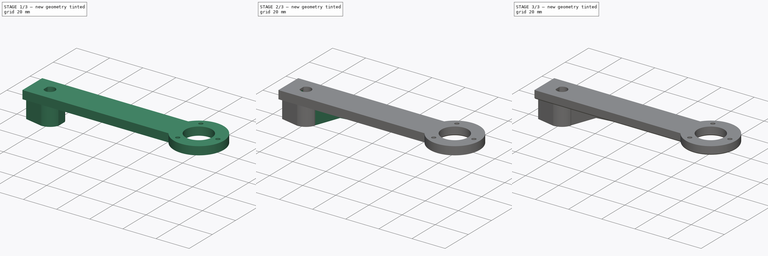
[diagram: build sequence overview — one tinted view per stage of 3, left to right]
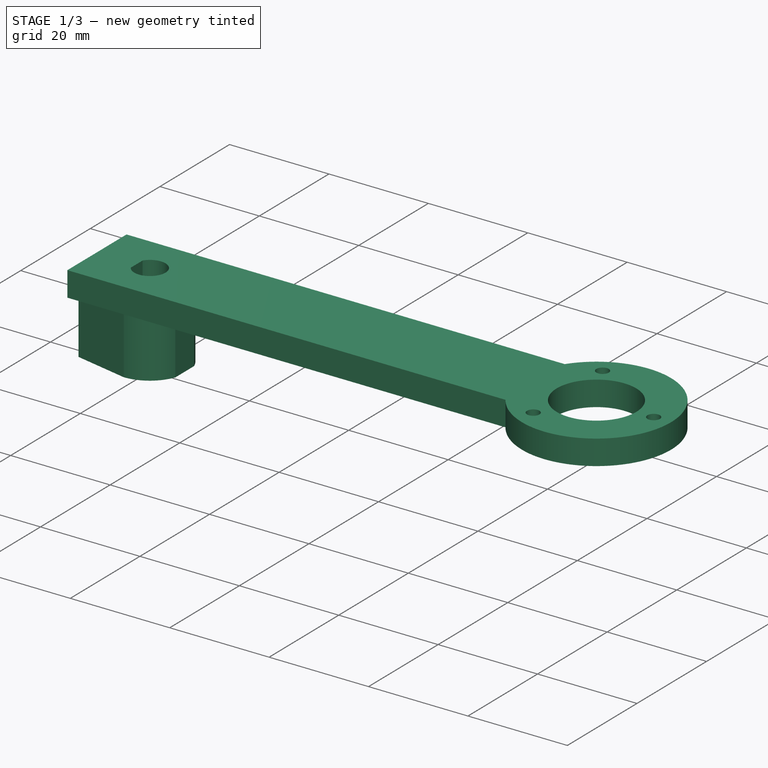
[diagram: stage 1 of 3 — iso view after this stage's code; geometry added in this stage tinted green]
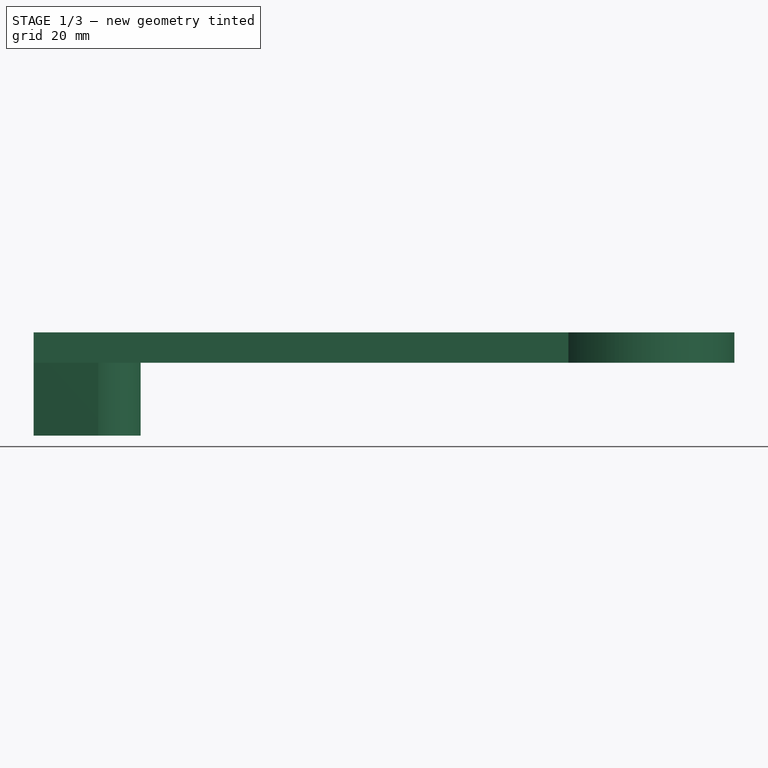
[diagram: stage 1 of 3 — front view after this stage's code; geometry added in this stage tinted green]
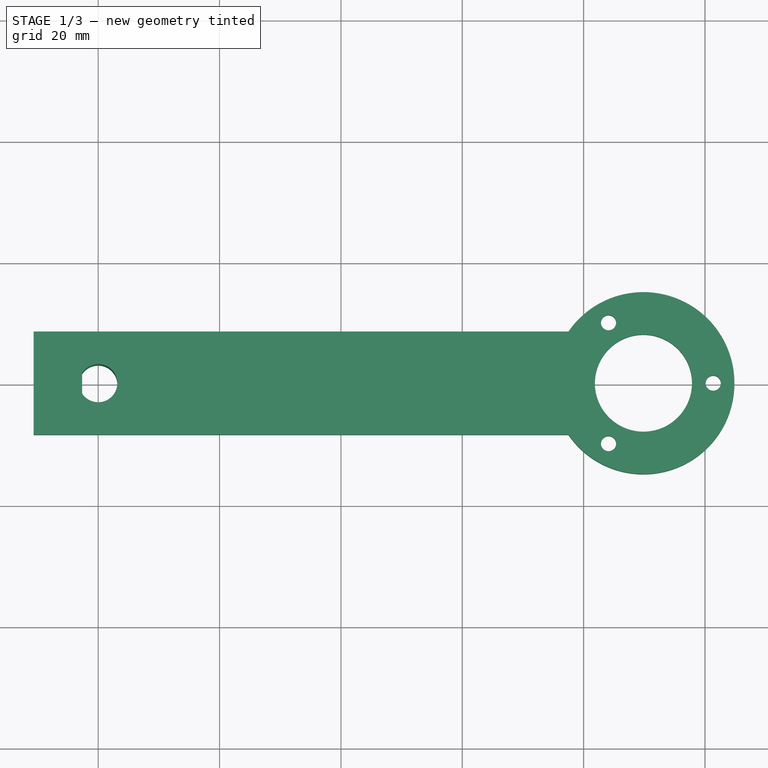
[diagram: stage 1 of 3 — top view after this stage's code; geometry added in this stage tinted green]
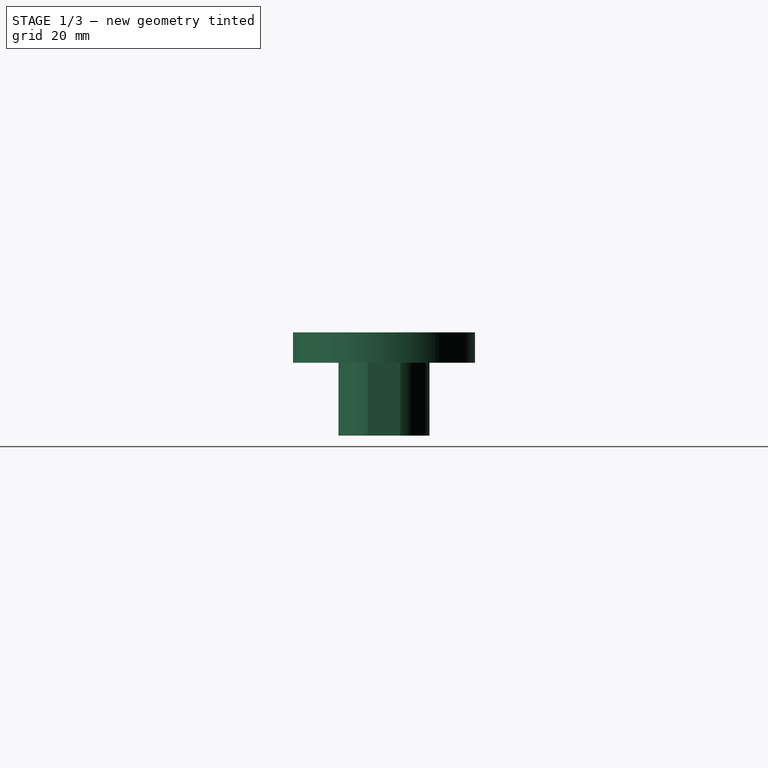
[diagram: stage 1 of 3 — right view after this stage's code; geometry added in this stage tinted green]
FCSTD DOCUMENT  (FreeCAD 0.19R24276 (Git))
Label: Shatun_L89_85__d8_d16
License: All rights reserved
LicenseURL: http://en.wikipedia.org/wiki/All_rights_reserved
objects: Sketcher::SketchObject×6, PartDesign::Pad×3, PartDesign::Chamfer×2, PartDesign::Pocket×1, PartDesign::Fillet×1, PartDesign::Body×1
note: 21 computed .brp shape members not serialized (recipe doc carries the construction recipe); baked Part::Feature solids carry a one-line shape summary decoded from their .brp

FEATURE [Sketcher::SketchObject] Sketch  label="Sketch_paper_knife"
  FullyConstrained = false
  MapMode = 5
  Support = -> [XY_Plane]
  sketch-geometry (42):
    g0: Circle CenterX=0 CenterY=0 CenterZ=0 NormalX=0 NormalY=0 NormalZ=1 AngleXU=0 Radius=70
    g1: LineSegment StartX=0 StartY=0 StartZ=0 EndX=-28.1555 EndY=64.088 EndZ=0
    g2: Circle CenterX=148 CenterY=0 CenterZ=0 NormalX=0 NormalY=0 NormalZ=1 AngleXU=0 Radius=70
    g3: LineSegment StartX=148 StartY=0 StartZ=0 EndX=119.844 EndY=64.088 EndZ=0
    g4: LineSegment StartX=119.844 StartY=64.088 StartZ=0 EndX=-28.1555 EndY=64.088 EndZ=0
    g5: LineSegment StartX=-234.473 StartY=320.288 StartZ=0 EndX=-134.473 EndY=320.288 EndZ=0
    g6: LineSegment StartX=-224.473 StartY=338.288 StartZ=0 EndX=-124.473 EndY=338.288 EndZ=0
    g7: LineSegment StartX=-134.473 StartY=320.288 StartZ=0 EndX=-124.473 EndY=338.288 EndZ=0
    g8: LineSegment StartX=-234.473 StartY=320.288 StartZ=0 EndX=-224.473 EndY=338.288 EndZ=0
    g9: Circle CenterX=-140.473 CenterY=329.288 CenterZ=0 NormalX=0 NormalY=0 NormalZ=1 AngleXU=0 Radius=2.3784
    g10: LineSegment StartX=-233.473 StartY=322.088 StartZ=0 EndX=-133.473 EndY=322.088 EndZ=0
    g11: Circle CenterX=0 CenterY=0 CenterZ=0 NormalX=0 NormalY=0 NormalZ=1 AngleXU=0 Radius=37.5
    g12: Circle CenterX=148 CenterY=0 CenterZ=0 NormalX=0 NormalY=0 NormalZ=1 AngleXU=0 Radius=37.5
    g13: Circle CenterX=119.844 CenterY=64.088 CenterZ=0 NormalX=0 NormalY=0 NormalZ=1 AngleXU=0 Radius=8
    g14: Circle CenterX=-28.1555 CenterY=64.088 CenterZ=0 NormalX=0 NormalY=0 NormalZ=1 AngleXU=0 Radius=8
    g15: Circle CenterX=119.844 CenterY=64.088 CenterZ=0 NormalX=0 NormalY=0 NormalZ=1 AngleXU=0 Radius=2.5
    g16: Circle CenterX=-28.1555 CenterY=64.088 CenterZ=0 NormalX=0 NormalY=0 NormalZ=1 AngleXU=0 Radius=2.5
    g17: Circle CenterX=22.2785 CenterY=154.482 CenterZ=0 NormalX=0 NormalY=0 NormalZ=1 AngleXU=0 Radius=2.5
    g18: LineSegment StartX=-100.221 StartY=182.69 StartZ=0 EndX=22.2785 EndY=182.69 EndZ=0
    g19: ArcOfCircle CenterX=27.0798 CenterY=159.482 CenterZ=0 NormalX=0 NormalY=0 NormalZ=1 AngleXU=0 Radius=16 StartAngle=4.17347 EndAngle=5.96536
    g20: LineSegment StartX=27.0798 StartY=159.482 StartZ=0 EndX=27.0798 EndY=143.482 EndZ=0
    g21: ArcOfCircle CenterX=-75.7215 CenterY=162.006 CenterZ=0 NormalX=0 NormalY=0 NormalZ=1 AngleXU=0 Radius=8 StartAngle=3.71141 EndAngle=5.43055
    g22: LineSegment StartX=-107.721 StartY=168.69 StartZ=0 EndX=-100.221 EndY=182.69 EndZ=0
    g23: LineSegment StartX=-107.721 StartY=168.69 StartZ=0 EndX=-103.721 EndY=157.69 EndZ=0
    g24: ArcOfCircle CenterX=-18.2109 CenterY=83.6932 CenterZ=0 NormalX=0 NormalY=0 NormalZ=1 AngleXU=0 Radius=72.29 StartAngle=1.03221 EndAngle=1.56403
    g25: LineSegment StartX=-17.7215 StartY=155.982 StartZ=0 EndX=-70.4575 EndY=155.982 EndZ=0
    g26: LineSegment StartX=-82.4575 StartY=157.69 StartZ=0 EndX=-103.721 EndY=157.69 EndZ=0
    g27: ArcOfCircle CenterX=16.2785 CenterY=157.242 CenterZ=0 NormalX=0 NormalY=0 NormalZ=1 AngleXU=0 Radius=26.1461 StartAngle=6.17743 EndAngle=7.62244
    g28: LineSegment StartX=22.2785 StartY=154.482 StartZ=0 EndX=42.2785 EndY=154.482 EndZ=0
    g29: LineSegment StartX=22.2785 StartY=154.482 StartZ=0 EndX=22.2785 EndY=182.69 EndZ=0
    g30: ArcOfCircle CenterX=-96.7215 CenterY=168.69 CenterZ=0 NormalX=0 NormalY=0 NormalZ=1 AngleXU=0 Radius=2.5 StartAngle=1.5708 EndAngle=4.71239
    g31: ArcOfCircle CenterX=-6.72148 CenterY=168.69 CenterZ=0 NormalX=0 NormalY=0 NormalZ=1 AngleXU=0 Radius=2.5 StartAngle=4.71239 EndAngle=7.85398
    g32: LineSegment StartX=-96.7215 StartY=166.19 StartZ=0 EndX=-6.72148 EndY=166.19 EndZ=0
    g33: LineSegment StartX=-96.7215 StartY=171.19 StartZ=0 EndX=-6.72148 EndY=171.19 EndZ=0
    g34: LineSegment StartX=-27.3628 StartY=293.719 StartZ=0 EndX=-27.3628 EndY=353.575 EndZ=0
    g35: LineSegment StartX=-190.721 StartY=159.69 StartZ=0 EndX=-90.7215 EndY=159.69 EndZ=0
    g36: LineSegment StartX=-180.721 StartY=177.69 StartZ=0 EndX=-80.7215 EndY=177.69 EndZ=0
    g37: LineSegment StartX=-90.7215 StartY=159.69 StartZ=0 EndX=-80.7215 EndY=177.69 EndZ=0
    g38: LineSegment StartX=-190.721 StartY=159.69 StartZ=0 EndX=-180.721 EndY=177.69 EndZ=0
    g39: Circle CenterX=-96.7215 CenterY=168.69 CenterZ=0 NormalX=0 NormalY=0 NormalZ=1 AngleXU=0 Radius=2.3784
    g40: LineSegment StartX=-189.721 StartY=161.49 StartZ=0 EndX=-89.7215 EndY=161.49 EndZ=0
    g41: LineSegment StartX=-69.9969 StartY=0.662501 StartZ=0 EndX=-139.997 EndY=0.662501 EndZ=0
  constraints (110):
    c: Coincident(g0,g-1)
    c: Coincident(g1,g-1)
    c: PointOnObject(g1,g0)
    c: Diameter(g0) = 140
    c: PointOnObject(g2,g-1)
    c: DistanceX(g-1,g2) = 148
    c: Equal(g2,g0)
    c: Coincident(g3,g2)
    c: PointOnObject(g3,g2)
    c: Coincident(g4,g3)
    c: Coincident(g4,g1)
    c: DistanceX(g4,g4) = 148
    c: Horizontal(g5)
    c: Horizontal(g6)
    c: Coincident(g7,g5)
    c: Coincident(g7,g6)
    c: Coincident(g8,g5)
    c: Coincident(g6,g8)
    c: Parallel(g8,g7)
    c: DistanceY(g5,g6) = 18
    c: DistanceX(g5,g5) = 100
    c: DistanceX(g5,g6) = 110
    c: DistanceX(g9,g5) = 6
    c: DistanceY(g5,g9) = 9
    c: PointOnObject(g10,g8)
    c: PointOnObject(g10,g7)
    c: Horizontal(g10)
    c: DistanceY(g5,g10) = 1.8
    c: Coincident(g11,g-1)
    c: Coincident(g12,g2)
    c: Equal(g12,g11)
    c: Diameter(g12) = 75
    c: Coincident(g13,g3)
    c: Diameter(g13) = 16
    c: Coincident(g14,g1)
    c: Equal(g14,g13)
    c: Coincident(g15,g3)
    c: Coincident(g16,g1)
    c: Equal(g16,g15)
    c: Diameter(g15) = 5
    c: Diameter(g17) = 5
    c: Horizontal(g18)
    c: Coincident(g20,g19)
    c: PointOnObject(g20,g19)
    c: Vertical(g20)
    c: DistanceX(g21,g17) = 98
    c: Diameter(g21) = 16
    c: DistanceX(g21,g21) = 12
    c: Coincident(g23,g22)
    c: DistanceX(g23,g17) = 126
    c: DistanceY(g23,g22) = 11
    c: DistanceY(g23,g22) = 25
    c: DistanceX(g24,g17) = 40
    c: Coincident(g19,g24)
    c: Diameter(g24) = 144.58
    c: Coincident(g25,g24)
    c: Coincident(g25,g21)
    c: Horizontal(g25)
    c: Coincident(g26,g21)
    c: Coincident(g26,g23)
    c: Horizontal(g26)
    c: DistanceX(g22,g23) = 4
    c: Coincident(g27,g19)
    c: Coincident(g18,g27)
    c: Coincident(g18,g22)
    c: DistanceX(g22,g18) = 7.5
    c: Coincident(g28,g17)
    c: Horizontal(g28)
    c: DistanceY(g20,g17) = 11
    c: Diameter(g19) = 32
    c: Coincident(g28,g19)
    c: Coincident(g29,g17)
    c: Coincident(g29,g18)
    c: Vertical(g29)
    c: DistanceX(g27,g17) = 6
    c: DistanceY(g17,g27) = 2.76
    c: DistanceX(g17,g19) = 20
    c: Tangent(g30,g33) = 1.5708
    c: Tangent(g30,g32) = -1.5708
    c: Tangent(g32,g31) = -1.5708
    c: Tangent(g33,g31) = 1.5708
    c: Horizontal(g32)
    c: Equal(g30,g31)
    c: Diameter(g31) = 5
    c: Vertical(g34)
    c: Horizontal(g35)
    c: Horizontal(g36)
    c: Coincident(g37,g35)
    c: Coincident(g37,g36)
    c: Coincident(g38,g35)
    c: Coincident(g36,g38)
    c: Parallel(g38,g37)
    c: DistanceY(g35,g36) = 18
    c: Equal(g5,g35) = 100
    c: DistanceX(g35,g36) = 110
    c: DistanceX(g39,g35) = 6
    c: DistanceY(g35,g39) = 9
    c: PointOnObject(g40,g38)
    c: PointOnObject(g40,g37)
    c: Horizontal(g40)
    c: DistanceY(g35,g40) = 1.8
    c: DistanceY(g23,g30) = 11
    c: Coincident(g39,g30)
    c: DistanceX(g23,g30) = 7
    c: DistanceX(g23,g31) = 97
    c: PointOnObject(g41,g0)
    c: Horizontal(g41)
    c: DistanceX(g41,g41) = 70
    c: DistanceX(g19,g17) = 3.41
    c: DistanceY(g17,g24) = 1.5
FEATURE [Sketcher::SketchObject] Sketch001  label="Sketch001_master_sketch"
  FullyConstrained = false
  MapMode = 5
  Support = -> [XY_Plane]
  sketch-geometry (11):
    g0: Circle CenterX=0 CenterY=0 CenterZ=0 NormalX=0 NormalY=0 NormalZ=1 AngleXU=0 Radius=70
    g1: LineSegment StartX=0 StartY=0 StartZ=0 EndX=-30.5451 EndY=62.9841 EndZ=0
    g2: Circle CenterX=200 CenterY=0 CenterZ=0 NormalX=0 NormalY=0 NormalZ=1 AngleXU=0 Radius=70
    g3: LineSegment StartX=200 StartY=0 StartZ=0 EndX=169.455 EndY=62.9841 EndZ=0
    g4: LineSegment StartX=169.455 StartY=62.9841 StartZ=0 EndX=-30.5451 EndY=62.9841 EndZ=0
    g5: Circle CenterX=0 CenterY=0 CenterZ=0 NormalX=0 NormalY=0 NormalZ=1 AngleXU=0 Radius=37.5
    g6: Circle CenterX=200 CenterY=0 CenterZ=0 NormalX=0 NormalY=0 NormalZ=1 AngleXU=0 Radius=37.5
    g7: Circle CenterX=169.455 CenterY=62.9841 CenterZ=0 NormalX=0 NormalY=0 NormalZ=1 AngleXU=0 Radius=8
    g8: Circle CenterX=-30.5451 CenterY=62.9841 CenterZ=0 NormalX=0 NormalY=0 NormalZ=1 AngleXU=0 Radius=8
    g9: Circle CenterX=169.455 CenterY=62.9841 CenterZ=0 NormalX=0 NormalY=0 NormalZ=1 AngleXU=0 Radius=2.5
    g10: Circle CenterX=-30.5451 CenterY=62.9841 CenterZ=0 NormalX=0 NormalY=0 NormalZ=1 AngleXU=0 Radius=2.5
  constraints (24):
    c: Coincident(g0,g-1)
    c: Coincident(g1,g-1)
    c: PointOnObject(g1,g0)
    c: Diameter(g0) = 140
    c: PointOnObject(g2,g-1)
    c: DistanceX(g-1,g2) = 200
    c: Equal(g2,g0)
    c: Coincident(g3,g2)
    c: PointOnObject(g3,g2)
    c: Coincident(g4,g3)
    c: Coincident(g4,g1)
    c: DistanceX(g4,g4) = 200
    c: Coincident(g5,g-1)
    c: Coincident(g6,g2)
    c: Equal(g6,g5)
    c: Diameter(g6) = 75
    c: Coincident(g7,g3)
    c: Diameter(g7) = 16
    c: Coincident(g8,g1)
    c: Equal(g8,g7)
    c: Coincident(g9,g3)
    c: Coincident(g10,g1)
    c: Equal(g10,g9)
    c: Diameter(g9) = 5
FEATURE [Sketcher::SketchObject] Sketch002  label="Sketch002_d6,3_d15_L8"
  FullyConstrained = false
  MapMode = 5
  Support = -> [XY_Plane]
  sketch-geometry (12):
    g0: ArcOfCircle CenterX=-4.7e-15 CenterY=0 CenterZ=0 NormalX=0 NormalY=0 NormalZ=1 AngleXU=0 Radius=3.15 StartAngle=3.71276 EndAngle=8.85361
    g1: LineSegment StartX=-2.65 StartY=1.70294 StartZ=0 EndX=-2.65 EndY=-1.70294 EndZ=0
    g2: LineSegment StartX=0 StartY=0 StartZ=0 EndX=3.15 EndY=0 EndZ=0
    g3: ArcOfCircle CenterX=-4.7e-15 CenterY=0 CenterZ=0 NormalX=0 NormalY=0 NormalZ=1 AngleXU=0 Radius=7.5 StartAngle=4.71239 EndAngle=5.91598
    g4: LineSegment StartX=-10.65 StartY=5.28957 StartZ=0 EndX=-10.65 EndY=-5.28957 EndZ=0
    g5: LineSegment StartX=-4.7e-15 StartY=0 StartZ=0 EndX=-4.7e-15 EndY=7.5 EndZ=0
    g6: LineSegment StartX=-10.65 StartY=5.28957 StartZ=0 EndX=-5.3e-15 EndY=7.5 EndZ=0
    g7: LineSegment StartX=-4.7e-15 StartY=0 StartZ=0 EndX=-4.7e-15 EndY=-7.5 EndZ=0
    g8: LineSegment StartX=-10.65 StartY=-5.28957 StartZ=0 EndX=-5.3e-15 EndY=-7.5 EndZ=0
    g9: LineSegment StartX=-4.7e-15 StartY=0 StartZ=0 EndX=-10.65 EndY=0 EndZ=0
    g10: LineSegment StartX=7 StartY=2.69258 StartZ=0 EndX=7 EndY=-2.69258 EndZ=0
    g11: ArcOfCircle CenterX=-4.7e-15 CenterY=0 CenterZ=0 NormalX=0 NormalY=0 NormalZ=1 AngleXU=0 Radius=7.5 StartAngle=0.367208 EndAngle=1.5708
  constraints (32):
    c: Coincident(g0,g-1)
    c: Diameter(g0) = 6.3
    c: Vertical(g1)
    c: Coincident(g2,g-1)
    c: PointOnObject(g2,g0)
    c: Horizontal(g2)
    c: Coincident(g1,g0)
    c: Coincident(g1,g0)
    c: DistanceX(g0,g2) = 5.8
    c: Coincident(g3,g0)
    c: Diameter(g3) = 15
    c: Vertical(g4)
    c: DistanceX(g4,g0) = 8
    c: Coincident(g5,g0)
    c: Coincident(g6,g4)
    c: Coincident(g6,g5)
    c: Vertical(g5)
    c: Coincident(g7,g0)
    c: Coincident(g8,g4)
    c: Coincident(g8,g7)
    c: Coincident(g9,g0)
    c: Symmetric(g4,g4,g9)
    c: Horizontal(g9)
    c: Coincident(g3,g7)
    c: Coincident(g11,g5)
    c: Vertical(g10)
    c: DistanceX(g3,g10) = 7
    c: Vertical(g7)
    c: Equal(g3,g11)
    c: Coincident(g3,g10)
    c: Coincident(g11,g10)
    c: Coincident(g3,g11)
FEATURE [PartDesign::Pad] Pad  label="Pad_h12"
  Direction = (1,1,1)
  Length = 12
  Length2 = 100
  Profile = -> Sketch002
  Type = 0
FEATURE [Sketcher::SketchObject] Sketch004  label="Sketch004_shatun_L70"
  FullyConstrained = false
  MapMode = 5
  Placement = pos=(0,0,12) rot=(0,0,1;0rad)
  sketch-geometry (18):
    g0: LineSegment StartX=-10.65 StartY=8.5 StartZ=0 EndX=77.4908 EndY=8.5 EndZ=0
    g1: LineSegment StartX=77.4908 StartY=-8.5 StartZ=0 EndX=-10.65 EndY=-8.5 EndZ=0
    g2: LineSegment StartX=-10.65 StartY=-8.5 StartZ=0 EndX=-10.65 EndY=8.5 EndZ=0
    g3: LineSegment StartX=0 StartY=0 StartZ=0 EndX=-10.65 EndY=0 EndZ=0
    g4: Circle CenterX=89.85 CenterY=0 CenterZ=0 NormalX=0 NormalY=0 NormalZ=1 AngleXU=0 Radius=8
    g5: ArcOfCircle CenterX=89.85 CenterY=0 CenterZ=0 NormalX=0 NormalY=0 NormalZ=1 AngleXU=0 Radius=15 StartAngle=3.74405 EndAngle=8.82232
    g6: ArcOfCircle CenterX=0 CenterY=0 CenterZ=0 NormalX=0 NormalY=0 NormalZ=1 AngleXU=0 Radius=3.15 StartAngle=3.71276 EndAngle=8.85361
    g7: LineSegment StartX=-2.65 StartY=1.70294 StartZ=0 EndX=-2.65 EndY=-1.70294 EndZ=0
    g8: LineSegment StartX=0 StartY=0 StartZ=0 EndX=3.15 EndY=0 EndZ=0
    g9: LineSegment StartX=101.35 StartY=0 StartZ=0 EndX=84.1 EndY=9.95929 EndZ=0
    g10: LineSegment StartX=84.1 StartY=9.95929 StartZ=0 EndX=84.1 EndY=-9.95929 EndZ=0
    g11: LineSegment StartX=84.1 StartY=-9.95929 StartZ=0 EndX=101.35 EndY=0 EndZ=0
    g12: Circle CenterX=89.85 CenterY=0 CenterZ=0 NormalX=0 NormalY=0 NormalZ=1 AngleXU=0 Radius=11.5
    g13: Circle CenterX=84.1 CenterY=9.95929 CenterZ=0 NormalX=0 NormalY=0 NormalZ=1 AngleXU=0 Radius=1.25
    g14: Circle CenterX=101.35 CenterY=0 CenterZ=0 NormalX=0 NormalY=0 NormalZ=1 AngleXU=0 Radius=1.25
    g15: Circle CenterX=84.1 CenterY=-9.95929 CenterZ=0 NormalX=0 NormalY=0 NormalZ=1 AngleXU=0 Radius=1.25
    g16: Circle CenterX=89.85 CenterY=0 CenterZ=0 NormalX=0 NormalY=0 NormalZ=1 AngleXU=0 Radius=15
    g17: LineSegment StartX=89.85 StartY=0 StartZ=0 EndX=74.85 EndY=0 EndZ=0
  constraints (47):
    c: Coincident(g1,g2)
    c: Coincident(g2,g0)
    c: Horizontal(g0)
    c: Horizontal(g1)
    c: Vertical(g2)
    c: Coincident(g3,g-1)
    c: PointOnObject(g3,g-1)
    c: DistanceX(g3,g3) = 10.65
    c: Symmetric(g1,g0,g3)
    c: DistanceY(g2,g2) = 17
    c: PointOnObject(g4,g-1)
    c: Diameter(g4) = 16
    c: Coincident(g5,g4)
    c: Diameter(g5) = 30
    c: Coincident(g5,g1)
    c: Coincident(g5,g0)
    c: DistanceX(g-1,g4) = 89.85
    c: Coincident(g6,g-1)
    c: Vertical(g7)
    c: Diameter(g6) = 6.3
    c: Coincident(g6,g7)
    c: Coincident(g6,g7)
    c: Coincident(g8,g6)
    c: PointOnObject(g8,g6)
    c: DistanceX(g6,g8) = 5.8
    c: Coincident(g9,g10)
    c: Coincident(g10,g11)
    c: Coincident(g11,g9)
    c: Equal(g9,g10)
    c: Equal(g9,g11)
    c: PointOnObject(g9,g12)
    c: PointOnObject(g10,g12)
    c: PointOnObject(g11,g12)
    c: Coincident(g12,g4)
    c: PointOnObject(g11,g-1)
    c: Diameter(g12) = 23
    c: Coincident(g13,g9)
    c: Coincident(g14,g9)
    c: Coincident(g15,g10)
    c: Diameter(g15) = 2.5
    c: Equal(g15,g13)
    c: Equal(g15,g14)
    c: Equal(g16,g5)
    c: PointOnObject(g17,g16)
    c: Horizontal(g17)
    c: Coincident(g17,g4)
    c: Coincident(g16,g4)
FEATURE [PartDesign::Pad] Pad001  label="Pad001_h5"
  BaseFeature = -> Pad
  Direction = (1,1,1)
  Length = 5
  Length2 = 100
  Profile = -> Sketch004
  Type = 0
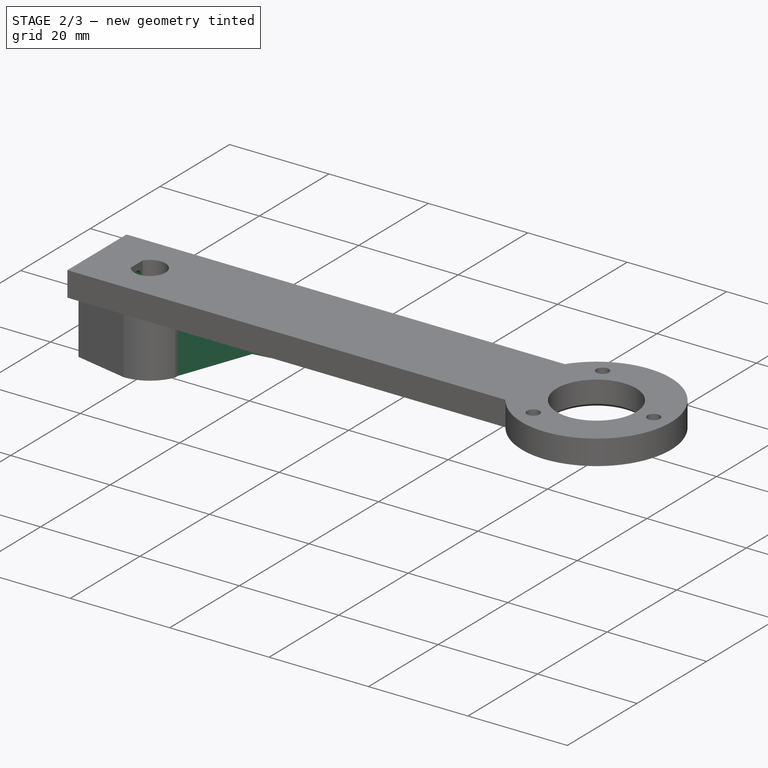
[diagram: stage 2 of 3 — iso view after this stage's code; geometry added in this stage tinted green]
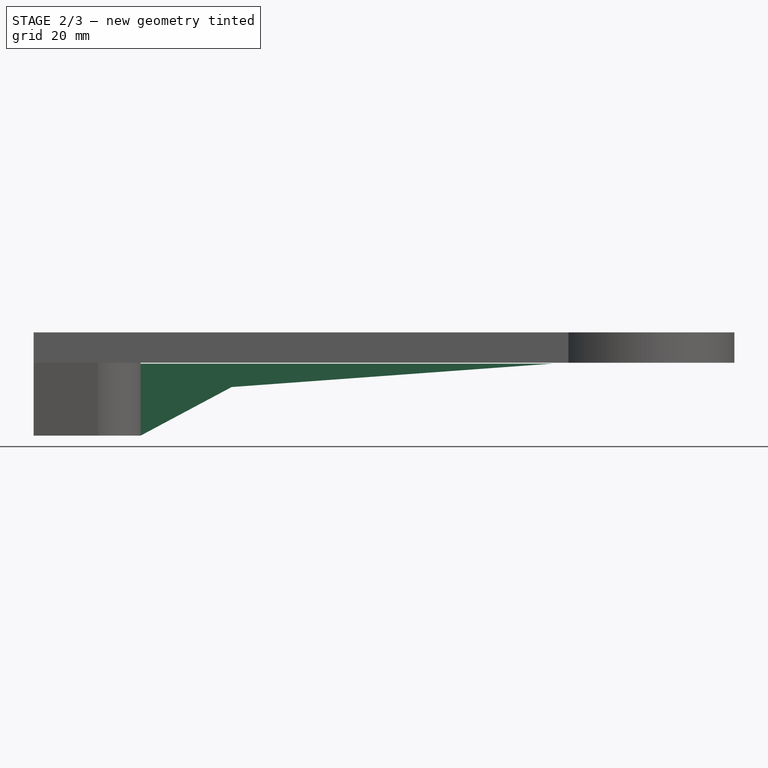
[diagram: stage 2 of 3 — front view after this stage's code; geometry added in this stage tinted green]
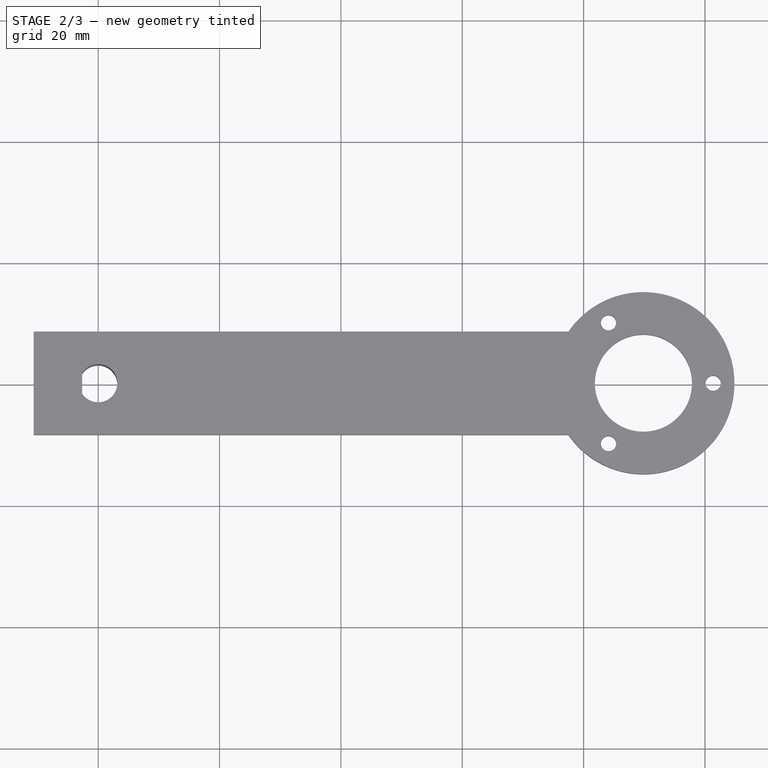
[diagram: stage 2 of 3 — top view after this stage's code; geometry added in this stage tinted green]
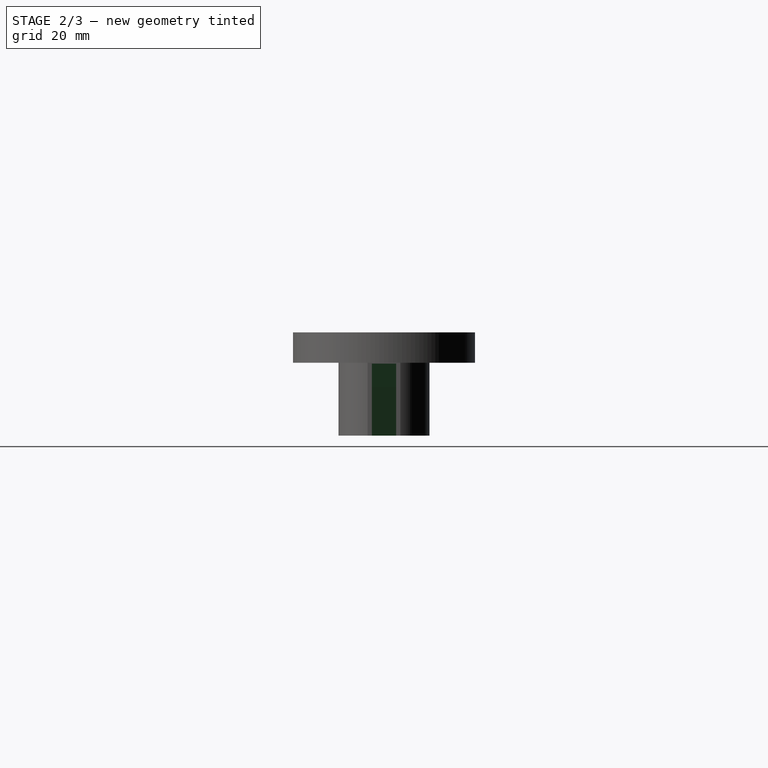
[diagram: stage 2 of 3 — right view after this stage's code; geometry added in this stage tinted green]
FEATURE [Sketcher::SketchObject] Sketch005  label="Sketch005_3otv_d2,5"
  FullyConstrained = true
  MapMode = 5
  Placement = pos=(-10.65,0,0) rot=(0.57735,-0.57735,-0.57735;2.0944rad)
  Support = -> [Pad001]
  sketch-geometry (6):
    g0: Circle CenterX=0 CenterY=14.5 CenterZ=0 NormalX=0 NormalY=0 NormalZ=1 AngleXU=0 Radius=1.25
    g1: Circle CenterX=0 CenterY=8.5 CenterZ=0 NormalX=0 NormalY=0 NormalZ=1 AngleXU=0 Radius=1.25
    g2: Circle CenterX=0 CenterY=2.5 CenterZ=0 NormalX=0 NormalY=0 NormalZ=1 AngleXU=0 Radius=1.25
    g3: LineSegment StartX=0 StartY=0 StartZ=0 EndX=0 EndY=17 EndZ=0
    g4: LineSegment StartX=0 StartY=2.5 StartZ=0 EndX=0 EndY=0 EndZ=0
    g5: LineSegment StartX=0 StartY=17 StartZ=0 EndX=0 EndY=14.5 EndZ=0
  constraints (15):
    c: Coincident(g3,g-1)
    c: PointOnObject(g3,g-2)
    c: DistanceY(g3,g3) = 17
    c: Coincident(g4,g2)
    c: Coincident(g4,g-1)
    c: Vertical(g4)
    c: Symmetric(g-1,g3,g1)
    c: Equal(g2,g1)
    c: Equal(g1,g0)
    c: Diameter(g1) = 2.5
    c: Coincident(g5,g3)
    c: Coincident(g5,g0)
    c: Vertical(g5)
    c: DistanceY(g0,g3) = 2.5
    c: DistanceY(g-1,g2) = 2.5
FEATURE [PartDesign::Pocket] Pocket  label="Pocket_h8"
  BaseFeature = -> Pad001
  Length = 8
  Length2 = 100
  Profile = -> Sketch005
  Type = 0
FEATURE [Sketcher::SketchObject] Sketch006  label="Sketch006_rebro"
  AttachmentOffset = pos=(0,0,-8.5) rot=(0,0,1;0rad)
  FullyConstrained = false
  MapMode = 5
  Placement = pos=(0,-3.268e-13,1.9e-15) rot=(0,0.707107,0.707107;3.14159rad)
  Support = -> [Pocket]
  sketch-geometry (27):
    g0: LineSegment StartX=-7 StartY=11.8639 StartZ=0 EndX=-75 EndY=11.8639 EndZ=0
    g1: LineSegment StartX=0 StartY=0 StartZ=0 EndX=-25 EndY=0 EndZ=0
    g2: LineSegment StartX=-7 StartY=0 StartZ=0 EndX=-22 EndY=8 EndZ=0
    g3: LineSegment StartX=-22.4184 StartY=-5 StartZ=0 EndX=23.2677 EndY=-5 EndZ=0
    g4: LineSegment StartX=-3 StartY=17 StartZ=0 EndX=3 EndY=17 EndZ=0
    g5: LineSegment StartX=3 StartY=-5 StartZ=0 EndX=-3 EndY=-5 EndZ=0
    g6: LineSegment StartX=-3 StartY=-5 StartZ=0 EndX=-3 EndY=17 EndZ=0
    g7: LineSegment StartX=0 StartY=0 StartZ=0 EndX=0 EndY=-5 EndZ=0
    g8: LineSegment StartX=3 StartY=17 StartZ=0 EndX=3 EndY=-5 EndZ=0
    g9: LineSegment StartX=-25 StartY=5 StartZ=0 EndX=22.9786 EndY=5 EndZ=0
    g10: LineSegment StartX=-22 StartY=8 StartZ=0 EndX=-75 EndY=11.8639 EndZ=0
    g11: LineSegment StartX=-25 StartY=5 StartZ=0 EndX=-25 EndY=0 EndZ=0
    g12: LineSegment StartX=-22.4184 StartY=-5 StartZ=0 EndX=-22.4184 EndY=-22.5924 EndZ=0
    g13: LineSegment StartX=23.2677 StartY=-5 StartZ=0 EndX=23.2677 EndY=-22.5924 EndZ=0
    g14: LineSegment StartX=-22.4184 StartY=-22.5924 StartZ=0 EndX=23.2677 EndY=-22.5924 EndZ=0
    g15: LineSegment StartX=-7 StartY=11.8639 StartZ=0 EndX=-7 EndY=0 EndZ=0
    g16: LineSegment StartX=-25 StartY=5 StartZ=0 EndX=-193.5 EndY=5 EndZ=0
    g17: LineSegment StartX=-193.5 StartY=5 StartZ=0 EndX=-193.5 EndY=7 EndZ=0
    g18: LineSegment StartX=-193.5 StartY=7 StartZ=0 EndX=-116.221 EndY=7 EndZ=0
    g19: LineSegment StartX=-116.221 StartY=7 StartZ=0 EndX=-116.221 EndY=5 EndZ=0
    g20: LineSegment StartX=-193.5 StartY=7 StartZ=0 EndX=-106.5 EndY=7 EndZ=0
    g21: LineSegment StartX=-106.5 StartY=7 StartZ=0 EndX=-106.5 EndY=18 EndZ=0
    g22: LineSegment StartX=-106.5 StartY=18 StartZ=0 EndX=-193.5 EndY=18 EndZ=0
    g23: LineSegment StartX=-193.5 StartY=18 StartZ=0 EndX=-193.5 EndY=7 EndZ=0
    g24: LineSegment StartX=0 StartY=-6.13346 StartZ=0 EndX=-105.5 EndY=-6.13346 EndZ=0
    g25: LineSegment StartX=-105.5 StartY=-6.13346 StartZ=0 EndX=-105.5 EndY=16.7346 EndZ=0
    g26: LineSegment StartX=-150 StartY=-10.5137 StartZ=0 EndX=-150 EndY=18 EndZ=0
  constraints (70):
    c: Horizontal(g0)
    c: DistanceX(g0,g-1) = 75
    c: Coincident(g10,g0)
    c: Coincident(g1,g-1)
    c: Horizontal(g1)
    c: DistanceX(g1,g1) = 25
    c: PointOnObject(g2,g1)
    c: DistanceX(g2,g2) = 15
    c: DistanceX(g2,g-1) = 7
    c: Horizontal(g3)
    c: Coincident(g5,g6)
    c: Coincident(g6,g4)
    c: Horizontal(g4)
    c: Horizontal(g5)
    c: Vertical(g6)
    c: Horizontal(g5,g3)
    c: DistanceY(g5,g4) = 22
    c: DistanceX(g4,g4) = 6
    c: Coincident(g7,g-1)
    c: PointOnObject(g7,g-2)
    c: Symmetric(g5,g5,g7)
    c: Coincident(g8,g4)
    c: Coincident(g8,g5)
    c: Vertical(g8)
    c: DistanceY(g7,g-1) = 5
    c: Horizontal(g9)
    c: DistanceY(g3,g9) = 10
    c: Vertical(g1,g9)
    c: Coincident(g10,g2)
    c: Coincident(g11,g9)
    c: Coincident(g12,g3)
    c: Vertical(g12)
    c: Coincident(g13,g3)
    c: Vertical(g13)
    c: Coincident(g14,g12)
    c: Coincident(g14,g13)
    c: Horizontal(g14)
    c: Coincident(g15,g0)
    c: Coincident(g15,g2)
    c: Vertical(g15)
    c: DistanceY(g9,g2) = 3
    c: Coincident(g16,g9)
    c: Horizontal(g16)
    c: Coincident(g17,g16)
    c: Vertical(g17)
    c: Coincident(g18,g17)
    c: Horizontal(g18)
    c: PointOnObject(g19,g16)
    c: Vertical(g19)
    c: DistanceY(g17,g17) = 2
    c: Coincident(g18,g19)
    c: Coincident(g20,g21)
    c: Coincident(g21,g22)
    c: Coincident(g22,g23)
    c: Coincident(g23,g20)
    c: Horizontal(g20)
    c: Horizontal(g22)
    c: Vertical(g21)
    c: Vertical(g23)
    c: Coincident(g20,g17)
    c: DistanceY(g23,g23) = 11
    c: Horizontal(g24)
    c: Coincident(g25,g24)
    c: Vertical(g25)
    c: DistanceX(g24,g24) = 105.5
    c: DistanceX(g22,g22) = 87
    c: Vertical(g26)
    c: Symmetric(g22,g21,g26)
    c: Vertical(g24,g7)
    c: DistanceX(g26,g7) = 150
FEATURE [PartDesign::Pad] Pad002  label="Pad002_L4"
  BaseFeature = -> Pocket
  Direction = (1,1,1)
  Length = 4
  Length2 = 100
  Midplane = true
  Profile = -> Sketch006
  Type = 0
FEATURE [PartDesign::Chamfer] Chamfer
  Angle = 45
  Base = -> Pad002 [Edge39]
  BaseFeature = -> Pad002
  ChamferType = 0
  FlipDirection = false
  Size = 0.6
  Size2 = 1
  SupportTransform = false
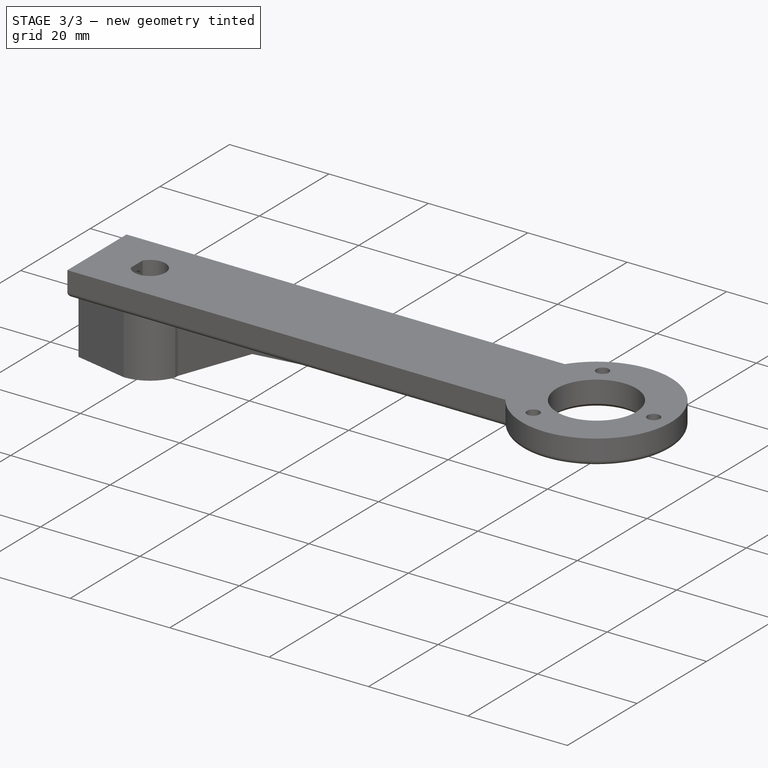
[diagram: stage 3 of 3 — iso view after this stage's code; geometry added in this stage tinted green]
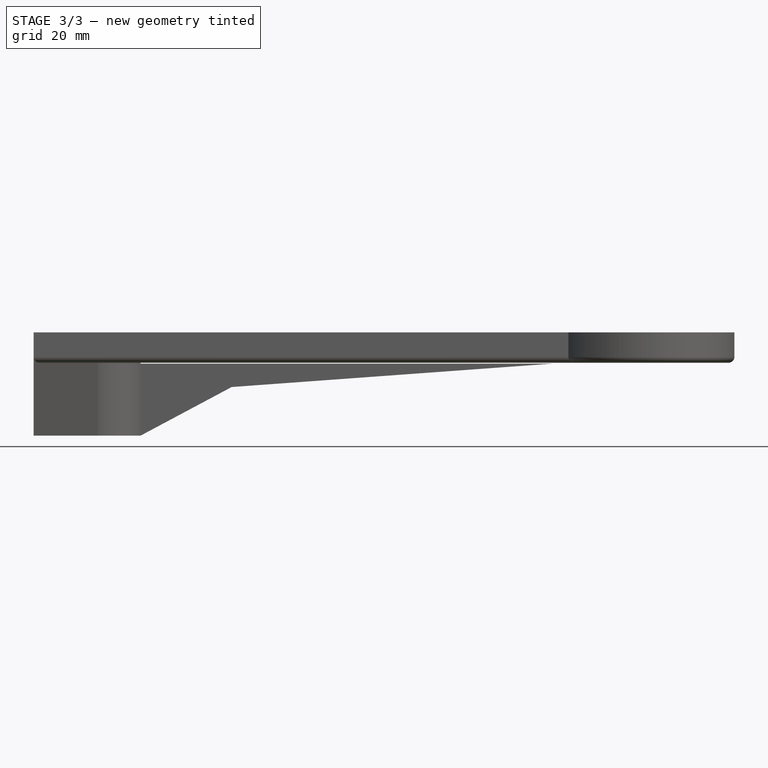
[diagram: stage 3 of 3 — front view after this stage's code; geometry added in this stage tinted green]
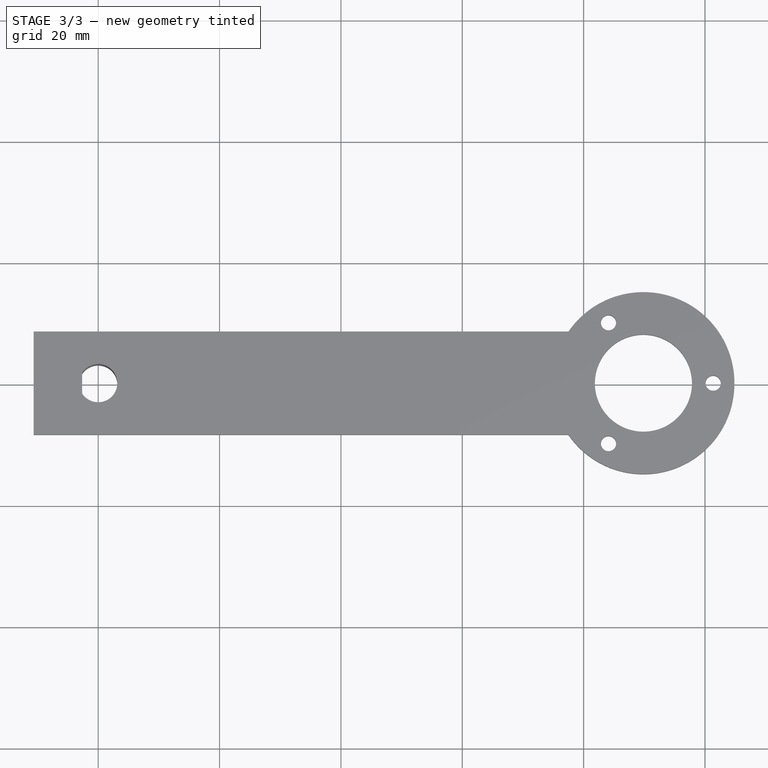
[diagram: stage 3 of 3 — top view after this stage's code; geometry added in this stage tinted green]
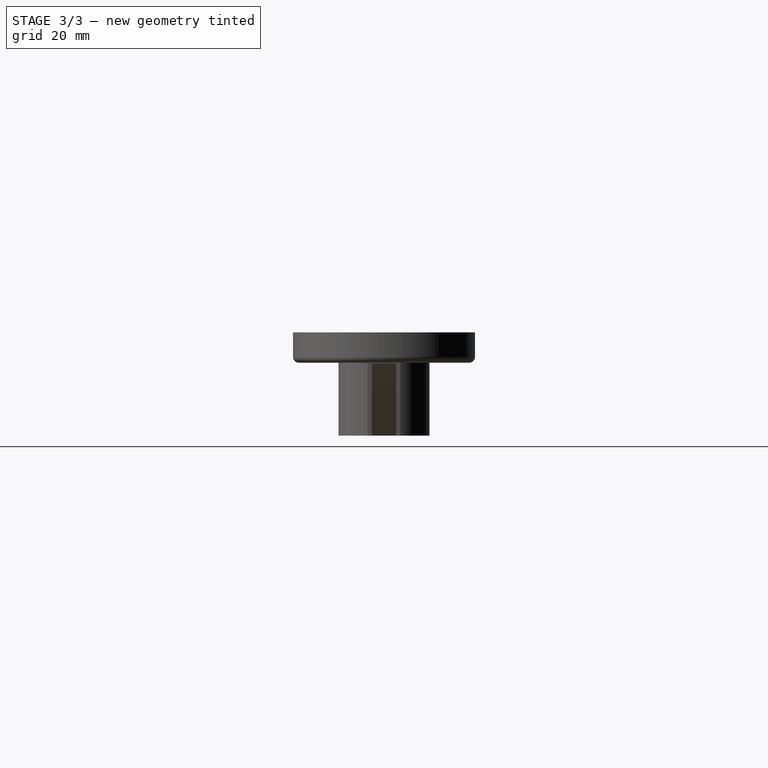
[diagram: stage 3 of 3 — right view after this stage's code; geometry added in this stage tinted green]
FEATURE [PartDesign::Chamfer] Chamfer001
  Angle = 45
  Base = -> Chamfer [Edge59,Edge58]
  BaseFeature = -> Chamfer
  ChamferType = 0
  FlipDirection = false
  Size = 0.7
  Size2 = 1
  SupportTransform = false
FEATURE [PartDesign::Fillet] Fillet
  Base = -> Chamfer001 [Edge52,Edge50,Edge51,Edge42,Edge45]
  BaseFeature = -> Chamfer001
  Radius = 1
  SupportTransform = false
FEATURE [PartDesign::Body] Body
  Group = -> [Sketch,Sketch001,Sketch002,Pad,Sketch004,Pad001,Sketch005,Pocket,Sketch006,Pad002,Chamfer,Chamfer001,Fillet]
  Origin = -> Origin
  Tip = -> Fillet
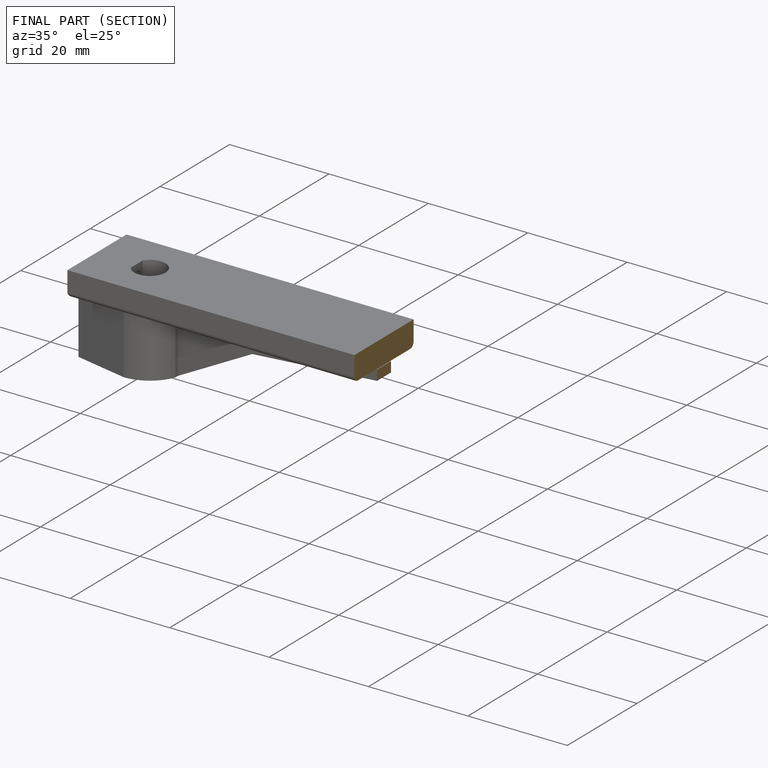
[diagram: finished part — half-section view (interior)]
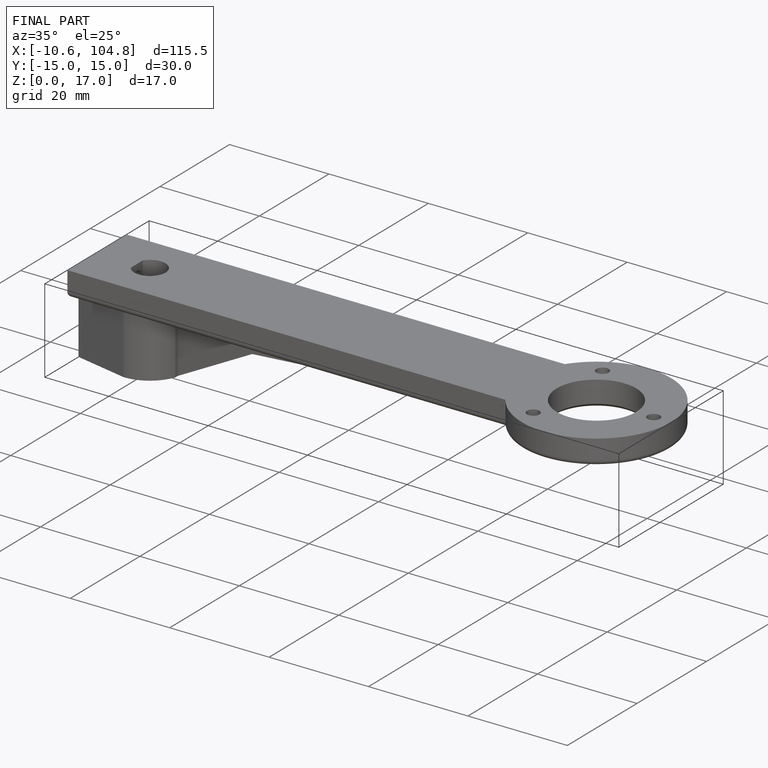
[diagram: finished part — iso view with bounding-box wireframe]
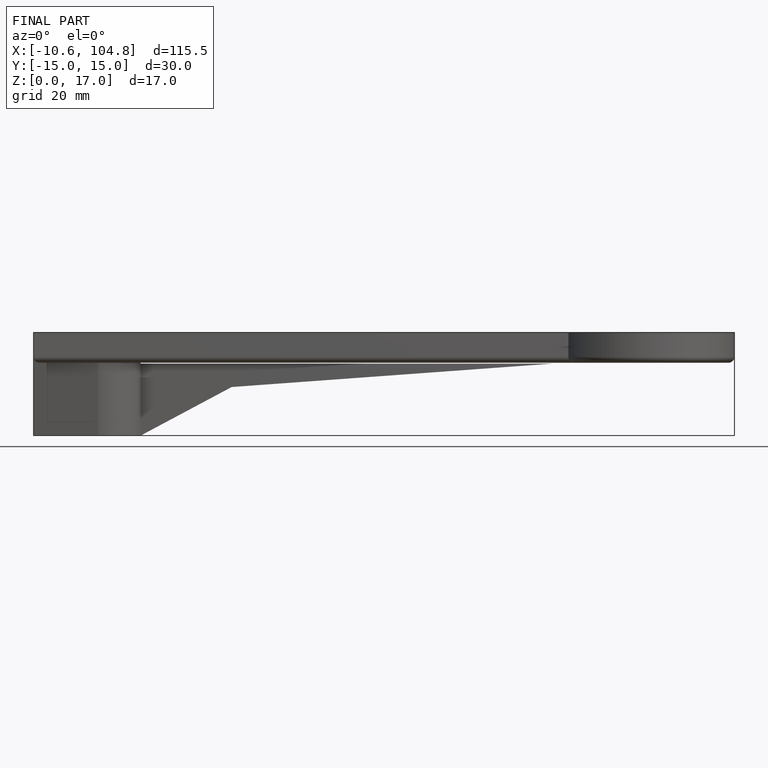
[diagram: finished part — front view with bounding-box wireframe]
